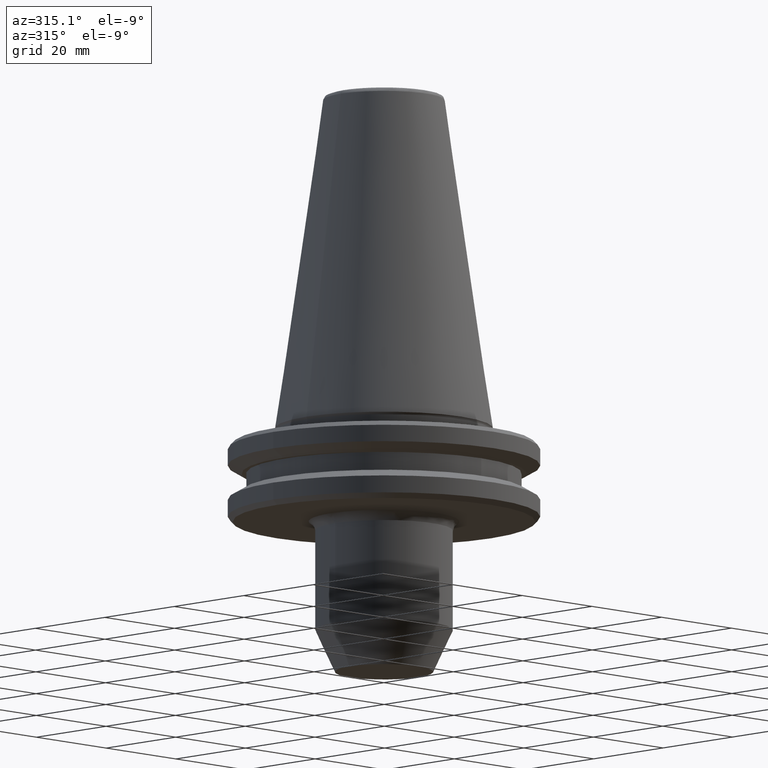
[diagram: clean part render]
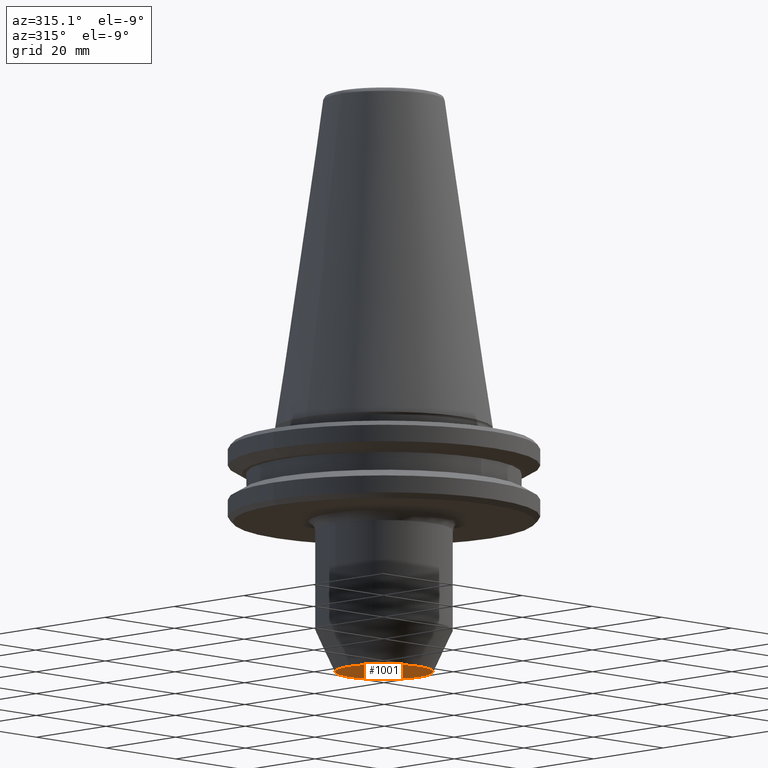
[diagram: same view with one face highlighted and labeled with its STEP entity id]
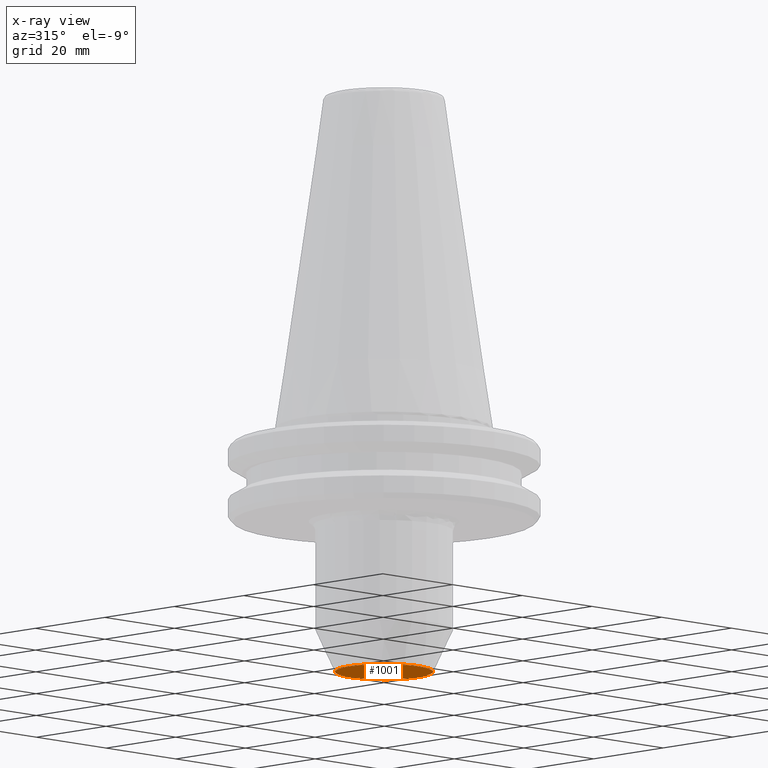
[diagram: x-ray of the same camera — body ghosted, the highlighted face saturated]
A machine part, auxiliary view. The second image highlights one B-rep face of the part: STEP entity #1001.
The next image is the same camera in x-ray: the body ghosted, the highlighted face saturated — about 0% of this face is hidden behind the body in this view.
In plain terms, the highlighted planar face has unit normal (0, 0, 1).
Its self-contained STEP definition (entity closure, byte-faithful):
#65 = FACE_OUTER_BOUND ( 'NONE', #543, .T. ) ;
#122 = CARTESIAN_POINT ( 'NONE',  ( -9.999999999999980500, 1.469576158976822600E-015, -50.00000000000004300 ) ) ;
#170 = PLANE ( 'NONE',  #1031 ) ;
#231 = DIRECTION ( 'NONE',  ( 0.0000000000000000000, 0.0000000000000000000, 1.000000000000000000 ) ) ;
#264 = CARTESIAN_POINT ( 'NONE',  ( -10.11999999999999900, -10.11999999999999900, -50.00000000000000000 ) ) ;
#323 = EDGE_CURVE ( 'NONE', #1286, #1082, #575, .T. ) ;
#356 = DIRECTION ( 'NONE',  ( 0.0000000000000000000, -0.0000000000000000000, 1.000000000000000000 ) ) ;
#543 = EDGE_LOOP ( 'NONE', ( #827, #824 ) ) ;
#551 = AXIS2_PLACEMENT_3D ( 'NONE', #1013, #356, #1127 ) ;
#575 = CIRCLE ( 'NONE', #722, 9.999999999999980500 ) ;
#647 = CIRCLE ( 'NONE', #551, 9.999999999999980500 ) ;
#722 = AXIS2_PLACEMENT_3D ( 'NONE', #1219, #1218, #1215 ) ;
#793 = CARTESIAN_POINT ( 'NONE',  ( 9.999999999999980500, 0.0000000000000000000, -50.00000000000004300 ) ) ;
#824 = ORIENTED_EDGE ( 'NONE', *, *, #1232, .F. ) ;
#827 = ORIENTED_EDGE ( 'NONE', *, *, #323, .F. ) ;
#1001 = ADVANCED_FACE ( 'NONE', ( #65 ), #170, .F. ) ;
#1013 = CARTESIAN_POINT ( 'NONE',  ( 0.0000000000000000000, 0.0000000000000000000, -50.00000000000004300 ) ) ;
#1031 = AXIS2_PLACEMENT_3D ( 'NONE', #264, #231, #1266 ) ;
#1082 = VERTEX_POINT ( 'NONE', #122 ) ;
#1127 = DIRECTION ( 'NONE',  ( 1.000000000000000000, 0.0000000000000000000, 0.0000000000000000000 ) ) ;
#1215 = DIRECTION ( 'NONE',  ( 1.000000000000000000, 0.0000000000000000000, 0.0000000000000000000 ) ) ;
#1218 = DIRECTION ( 'NONE',  ( 0.0000000000000000000, -0.0000000000000000000, 1.000000000000000000 ) ) ;
#1219 = CARTESIAN_POINT ( 'NONE',  ( 0.0000000000000000000, 0.0000000000000000000, -50.00000000000004300 ) ) ;
#1232 = EDGE_CURVE ( 'NONE', #1082, #1286, #647, .T. ) ;
#1266 = DIRECTION ( 'NONE',  ( 1.000000000000000000, 0.0000000000000000000, -0.0000000000000000000 ) ) ;
#1286 = VERTEX_POINT ( 'NONE', #793 ) ;